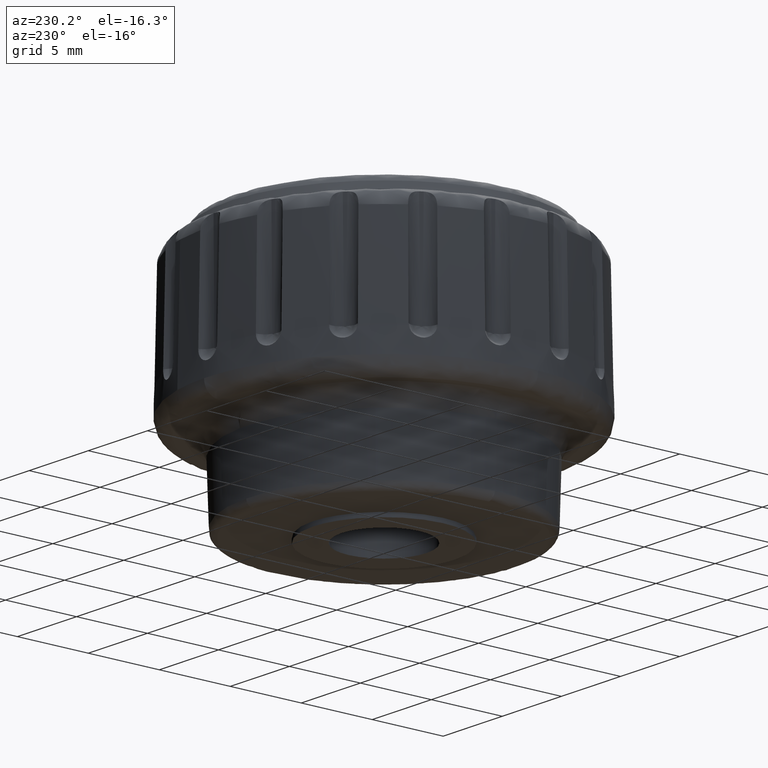
[diagram: clean part render]
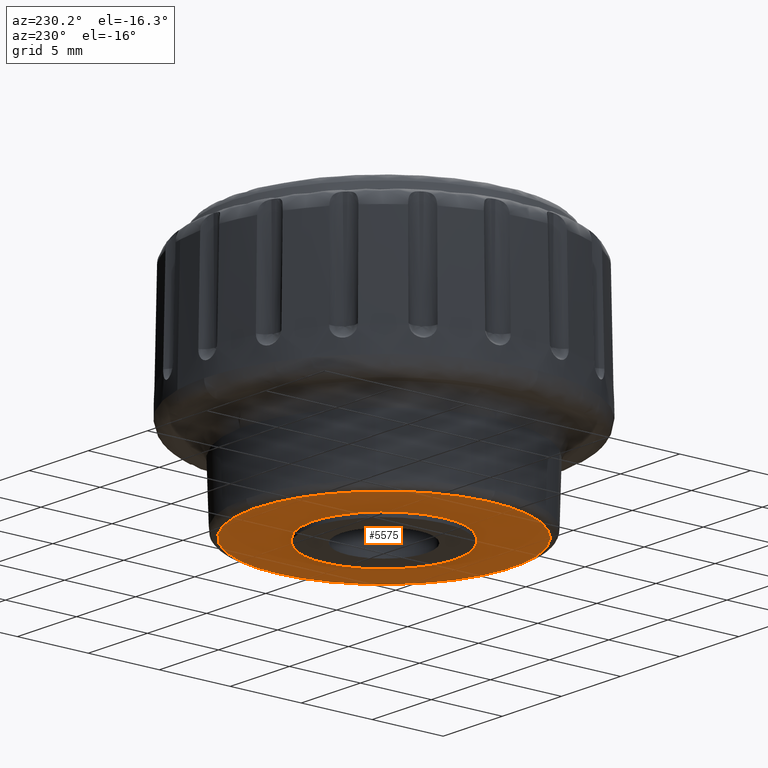
[diagram: same view with one face highlighted and labeled with its STEP entity id]
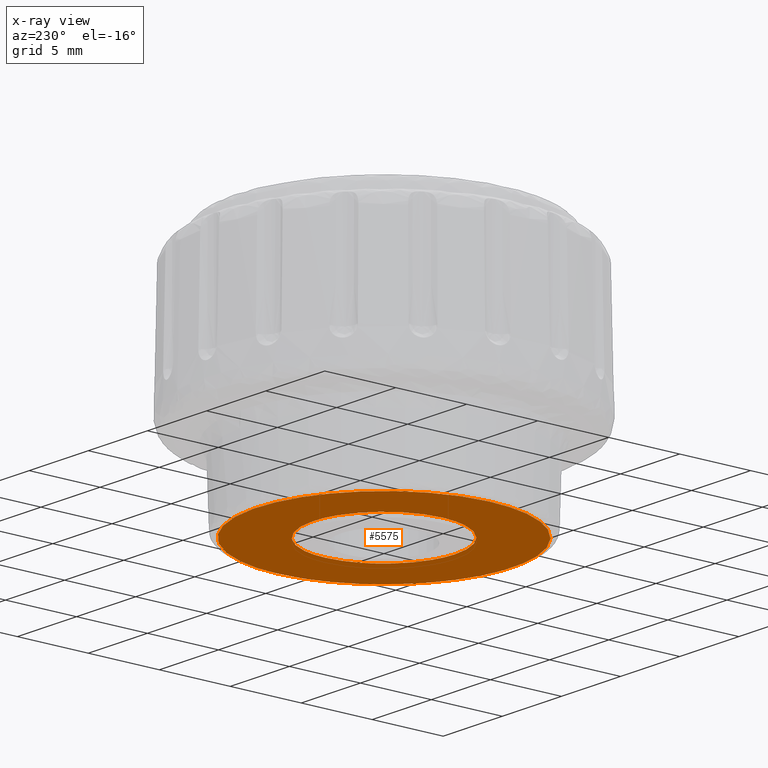
[diagram: x-ray of the same camera — body ghosted, the highlighted face saturated]
A machine part, auxiliary view. The second image highlights one B-rep face of the part: STEP entity #5575.
The next image is the same camera in x-ray: the body ghosted, the highlighted face saturated — about 0% of this face is hidden behind the body in this view.
In plain terms, the highlighted face is a freeform B-spline surface patch.
Its self-contained STEP definition (entity closure, byte-faithful):
#1564=CARTESIAN_POINT('',(-3.228710232529570,-3.817778278957625,0.300003000002192));
#1565=VERTEX_POINT('',#1564);
#1566=CARTESIAN_POINT('',(-5.0,0.0,0.300003000000004));
#1567=VERTEX_POINT('',#1566);
#1568=CARTESIAN_POINT('',(-3.228710232529570,-3.817778278957625,0.300003000002192));
#1569=CARTESIAN_POINT('',(-3.487876666218629,-3.598663134324712,0.300003000002067));
#1570=CARTESIAN_POINT('',(-3.858705299527794,-3.213805994689747,0.300003000001845));
#1571=CARTESIAN_POINT('',(-4.343816176764656,-2.516003810575840,0.300003000001446));
#1572=CARTESIAN_POINT('',(-4.658276118649627,-1.872863648544312,0.300003000001079));
#1573=CARTESIAN_POINT('',(-4.928388734568769,-0.995460427237910,0.300003000000568));
#1574=CARTESIAN_POINT('',(-5.000087539112589,-0.395949916810025,0.300003000000237));
#1575=CARTESIAN_POINT('',(-5.0,0.0,0.300003000000004));
#1576=B_SPLINE_CURVE_WITH_KNOTS('',3,(#1568,#1569,#1570,#1571,#1572,#1573,#1574,#1575),.UNSPECIFIED.,.F.,.U.,(4,1,1,1,1,4),(5.933138E-009,1.018128671941795,1.595071793655216,2.545317737113847,3.156198830820395,4.344016495721448),.UNSPECIFIED.);
#1577=EDGE_CURVE('',#1565,#1567,#1576,.T.);
#1579=CARTESIAN_POINT('',(0.000000305407711,4.999999999999991,0.300003000000004));
#1580=VERTEX_POINT('',#1579);
#1581=CARTESIAN_POINT('',(-5.0,0.0,0.300003000000004));
#1582=CARTESIAN_POINT('',(-5.000085949449764,0.388614610480620,0.300003000000003));
#1583=CARTESIAN_POINT('',(-4.919703729194469,1.073756136430105,0.300003000000004));
#1584=CARTESIAN_POINT('',(-4.630396356048808,1.940517931998691,0.300003000000004));
#1585=CARTESIAN_POINT('',(-4.304660064405916,2.568281619294666,0.300003000000002));
#1586=CARTESIAN_POINT('',(-3.904875654892181,3.151045128027404,0.300003000000011));
#1587=CARTESIAN_POINT('',(-3.417344968247991,3.679088319573781,0.300002999999994));
#1588=CARTESIAN_POINT('',(-2.812631835296491,4.153994843491471,0.300003000000011));
#1589=CARTESIAN_POINT('',(-2.271357368052631,4.467226529313811,0.300003000000002));
#1590=CARTESIAN_POINT('',(-1.716937638799692,4.706898849914013,0.300003000000003));
#1591=CARTESIAN_POINT('',(-0.991938523366407,4.929286401620831,0.300003000000008));
#1592=CARTESIAN_POINT('',(-0.388616186296629,5.000089777755469,0.300002999999999));
#1593=CARTESIAN_POINT('',(0.000000305407711,4.999999999999991,0.300003000000004));
#1594=B_SPLINE_CURVE_WITH_KNOTS('',3,(#1581,#1582,#1583,#1584,#1585,#1586,#1587,#1588,#1589,#1590,#1591,#1592,#1593),.UNSPECIFIED.,.F.,.U.,(4,1,1,1,1,1,1,1,1,1,4),(0.000000018048762,1.165826127305976,2.055538153307330,2.730491150127286,3.282725655623107,4.172433472952051,4.878064676458047,5.583698780153361,6.043893972706895,6.688171434623320,7.853994126725598),.UNSPECIFIED.);
#1595=EDGE_CURVE('',#1567,#1580,#1594,.T.);
#1597=CARTESIAN_POINT('',(5.0,0.0,0.300003000000004));
#1598=VERTEX_POINT('',#1597);
#1599=CARTESIAN_POINT('',(0.000000305407711,4.999999999999991,0.300003000000004));
#1600=CARTESIAN_POINT('',(0.286344283238275,5.000022862881608,0.300003000000004));
#1601=CARTESIAN_POINT('',(0.807888544029247,4.955069797084130,0.300003000000003));
#1602=CARTESIAN_POINT('',(1.653857236286079,4.745956520731895,0.300003000000003));
#1603=CARTESIAN_POINT('',(2.377672026939664,4.425134297469271,0.300003000000006));
#1604=CARTESIAN_POINT('',(3.002074051597843,4.013356495589333,0.300003000000002));
#1605=CARTESIAN_POINT('',(3.541547415022118,3.556650297315518,0.300003000000006));
#1606=CARTESIAN_POINT('',(3.987403329237135,3.046129769421228,0.300003000000004));
#1607=CARTESIAN_POINT('',(4.393128484066390,2.418256280920084,0.300003000000001));
#1608=CARTESIAN_POINT('',(4.704585760229278,1.759804861594883,0.300003000000006));
#1609=CARTESIAN_POINT('',(4.942415446028935,0.920374662305953,0.300003000000001));
#1610=CARTESIAN_POINT('',(5.000038755841989,0.317025056010142,0.300003000000009));
#1611=CARTESIAN_POINT('',(5.0,0.0,0.300003000000004));
#1612=B_SPLINE_CURVE_WITH_KNOTS('',3,(#1599,#1600,#1601,#1602,#1603,#1604,#1605,#1606,#1607,#1608,#1609,#1610,#1611),.UNSPECIFIED.,.F.,.U.,(4,1,1,1,1,1,1,1,1,1,4),(0.000000018059918,0.859030063009715,1.564662385063471,2.607775607636465,3.221371013824403,3.804289476344470,4.724666990506203,5.246218592854888,6.043893707812991,6.902926219229681,7.853993782459426),.UNSPECIFIED.);
#1613=EDGE_CURVE('',#1580,#1598,#1612,.T.);
#1615=CARTESIAN_POINT('',(3.626871797219657,-3.441772828653791,0.300002999993944));
#1616=VERTEX_POINT('',#1615);
#1617=CARTESIAN_POINT('',(5.0,0.0,0.300003000000004));
#1618=CARTESIAN_POINT('',(5.000039594629003,-0.326230424577311,0.300002999999429));
#1619=CARTESIAN_POINT('',(4.952420307956629,-0.810609910254602,0.300002999998578));
#1620=CARTESIAN_POINT('',(4.787969430658185,-1.473394332060644,0.300002999997409));
#1621=CARTESIAN_POINT('',(4.611412361628379,-1.957136756813458,0.300002999996558));
#1622=CARTESIAN_POINT('',(4.266648460460416,-2.658872507274525,0.300002999995323));
#1623=CARTESIAN_POINT('',(3.919585425998613,-3.133505074401429,0.300002999994487));
#1624=CARTESIAN_POINT('',(3.626871797219657,-3.441772828653791,0.300002999993944));
#1625=B_SPLINE_CURVE_WITH_KNOTS('',3,(#1617,#1618,#1619,#1620,#1621,#1622,#1623,#1624),.UNSPECIFIED.,.F.,.U.,(4,1,1,1,1,4),(4.219144E-009,0.978681366343536,1.453193902018849,2.046333008134870,2.520843395590381,3.796096662412990),.UNSPECIFIED.);
#1626=EDGE_CURVE('',#1598,#1616,#1625,.T.);
#1720=CARTESIAN_POINT('',(-0.000000305407801,-4.999999999999991,0.300003000000004));
#1721=VERTEX_POINT('',#1720);
#1722=CARTESIAN_POINT('',(-0.000000305407801,-4.999999999999991,0.300003000000004));
#1723=CARTESIAN_POINT('',(-0.255935063345291,-5.000008836122356,0.300003000000177));
#1724=CARTESIAN_POINT('',(-0.831795025140456,-4.955715651701415,0.300003000000568));
#1725=CARTESIAN_POINT('',(-1.650436812795562,-4.747093379846358,0.300003000001122));
#1726=CARTESIAN_POINT('',(-2.485795819542658,-4.368965914420380,0.300003000001690));
#1727=CARTESIAN_POINT('',(-2.977479484052941,-4.030298601254236,0.300003000002023));
#1728=CARTESIAN_POINT('',(-3.228710232529570,-3.817778278957625,0.300003000002192));
#1729=B_SPLINE_CURVE_WITH_KNOTS('',3,(#1722,#1723,#1724,#1725,#1726,#1727,#1728),.UNSPECIFIED.,.F.,.U.,(4,1,1,1,4),(3.442086E-009,0.767807039119473,1.727572381746347,2.522795852095688,3.509977629394390),.UNSPECIFIED.);
#1730=EDGE_CURVE('',#1721,#1565,#1729,.T.);
#1757=CARTESIAN_POINT('',(3.626871797219657,-3.441772828653791,0.300002999993944));
#1758=CARTESIAN_POINT('',(3.415943358915191,-3.664090769454365,0.300002999994298));
#1759=CARTESIAN_POINT('',(2.968987712318418,-4.055752477565600,0.300002999995041));
#1760=CARTESIAN_POINT('',(2.314836609882705,-4.449753770878607,0.300002999996135));
#1761=CARTESIAN_POINT('',(1.673190740587174,-4.725406760092380,0.300002999997209));
#1762=CARTESIAN_POINT('',(0.940483582209515,-4.937835395382691,0.300002999998432));
#1763=CARTESIAN_POINT('',(0.348728185388157,-5.000049475366486,0.300002999999419));
#1764=CARTESIAN_POINT('',(-0.000000305407801,-4.999999999999991,0.300003000000004));
#1765=B_SPLINE_CURVE_WITH_KNOTS('',3,(#1757,#1758,#1759,#1760,#1761,#1762,#1763,#1764),.UNSPECIFIED.,.F.,.U.,(4,1,1,1,1,4),(5.171537E-009,0.919367177250407,1.775330625140776,2.282566958796558,3.011720692089726,4.057897578769373),.UNSPECIFIED.);
#1766=EDGE_CURVE('',#1616,#1721,#1765,.T.);
#3706=CARTESIAN_POINT('',(-9.013663081773444,0.113302225684569,0.300012387994850));
#3707=VERTEX_POINT('',#3706);
#3719=CARTESIAN_POINT('',(9.012920000000001,0.0,0.300003000000004));
#3720=VERTEX_POINT('',#3719);
#3721=CARTESIAN_POINT('',(9.012920000000001,0.0,0.300003000000004));
#3722=CARTESIAN_POINT('',(9.005693152324946,-0.420812585093362,0.300003002989075));
#3723=CARTESIAN_POINT('',(9.002808470937779,-0.478013059228999,0.300004152235476));
#3724=CARTESIAN_POINT('',(8.967662263851691,-0.897417641021037,0.300003218037451));
#3725=CARTESIAN_POINT('',(8.944852643794906,-1.169608012440589,0.300002611750066));
#3726=CARTESIAN_POINT('',(8.883284901106279,-1.517919346114066,0.300004074631093));
#3727=CARTESIAN_POINT('',(8.833420879993835,-1.785891900005933,0.300003603898210));
#3728=CARTESIAN_POINT('',(8.774617933643611,-2.101902830498315,0.300003048778911));
#3729=CARTESIAN_POINT('',(8.703782388879233,-2.347985037260814,0.300003593675033));
#3730=CARTESIAN_POINT('',(8.612008971373534,-2.656122192159148,0.300003376358901));
#3731=CARTESIAN_POINT('',(8.523271321358440,-2.954066496198138,0.300003166231357));
#3732=CARTESIAN_POINT('',(8.421010198134708,-3.212808060287018,0.300003600796091));
#3733=CARTESIAN_POINT('',(8.304407619722269,-3.501052485323422,0.300003457150518));
#3734=CARTESIAN_POINT('',(8.184409962085260,-3.797689629220451,0.300003309322464));
#3735=CARTESIAN_POINT('',(8.067092198832848,-4.024226539414204,0.300001232292931));
#3736=CARTESIAN_POINT('',(7.917668626839244,-4.307251183230140,0.300003257506354));
#3737=CARTESIAN_POINT('',(7.786734959958324,-4.555253917591712,0.300005032116719));
#3738=CARTESIAN_POINT('',(7.603748925391267,-4.837453297810753,0.300004056071437));
#3739=CARTESIAN_POINT('',(7.449546549591815,-5.071737988381763,0.300003644598414));
#3740=CARTESIAN_POINT('',(7.273773854650208,-5.338795167181553,0.300003175567235));
#3741=CARTESIAN_POINT('',(7.109155271522424,-5.542979859504701,0.300003311892775));
#3742=CARTESIAN_POINT('',(6.906329856231010,-5.790212848640520,0.300003237519977));
#3743=CARTESIAN_POINT('',(6.713102672010740,-6.025746123740374,0.300003166666696));
#3744=CARTESIAN_POINT('',(6.507319113853569,-6.236422937688291,0.300001949854414));
#3745=CARTESIAN_POINT('',(6.292740704829078,-6.452755987734154,0.300003046896727));
#3746=CARTESIAN_POINT('',(6.081463836148919,-6.665760500226841,0.300004127059758));
#3747=CARTESIAN_POINT('',(5.865641269507597,-6.845507001355140,0.300001170584153));
#3748=CARTESIAN_POINT('',(5.633735605027272,-7.035934028122954,0.300003345954192));
#3749=CARTESIAN_POINT('',(5.427080812482855,-7.205626552881838,0.300005284460720));
#3750=CARTESIAN_POINT('',(5.140358812511428,-7.403023266488654,0.300003869989893));
#3751=CARTESIAN_POINT('',(4.919220215163092,-7.553408731335383,0.300004227096773));
#3752=CARTESIAN_POINT('',(4.682416569269272,-7.714447223901414,0.300004609500443));
#3753=CARTESIAN_POINT('',(4.404485746262907,-7.864588742675877,0.300003718705578));
#3754=CARTESIAN_POINT('',(4.151517547898840,-7.998943800669957,0.300003650862225));
#3755=CARTESIAN_POINT('',(3.874471386229484,-8.146087012183658,0.300003576561420));
#3756=CARTESIAN_POINT('',(3.631929977874516,-8.248978059632272,0.300009213412517));
#3757=CARTESIAN_POINT('',(3.342079097649271,-8.369104984005302,0.300004400496125));
#3758=CARTESIAN_POINT('',(3.033335431173096,-8.497061908078171,0.299999273868765));
#3759=CARTESIAN_POINT('',(2.804372871872594,-8.568127267859563,0.300000522171250));
#3760=CARTESIAN_POINT('',(2.484293994173751,-8.664468502987692,0.300003442351125));
#3761=CARTESIAN_POINT('',(2.214975578818009,-8.745531236538437,0.300005899427399));
#3762=CARTESIAN_POINT('',(1.874205760819565,-8.815079727501161,0.300003867088302));
#3763=CARTESIAN_POINT('',(1.598222829704168,-8.869409537667211,0.300003443203608));
#3764=CARTESIAN_POINT('',(1.281332735515474,-8.931792303844786,0.300002956489230));
#3765=CARTESIAN_POINT('',(1.012467681240331,-8.957671738781070,0.300003410389820));
#3766=CARTESIAN_POINT('',(0.690653248033153,-8.985877767134928,0.300003292015899));
#3767=CARTESIAN_POINT('',(0.378329020673736,-9.013252008633989,0.300003177132788));
#3768=CARTESIAN_POINT('',(0.087081647918485,-9.012709154933036,0.300003470848786));
#3769=CARTESIAN_POINT('',(-0.226482237605243,-9.009544456286179,0.300003281066305));
#3770=CARTESIAN_POINT('',(-0.637111620986460,-8.992818075932100,0.300004147699610));
#3771=CARTESIAN_POINT('',(-0.692881711385694,-8.988696973581742,0.300004143808880));
#3772=CARTESIAN_POINT('',(-1.101509600666652,-8.944884756136428,0.300003220021126));
#3773=CARTESIAN_POINT('',(-1.367334648530450,-8.916383557111777,0.300002619068694));
#3774=CARTESIAN_POINT('',(-1.704832626920623,-8.849355896946742,0.300003996515665));
#3775=CARTESIAN_POINT('',(-1.966038499719397,-8.795072696330623,0.300003614568845));
#3776=CARTESIAN_POINT('',(-2.276550864628068,-8.730542734513463,0.300003160523885));
#3777=CARTESIAN_POINT('',(-2.509175022059541,-8.658598234647911,0.300007283766807));
#3778=CARTESIAN_POINT('',(-2.811337565882708,-8.562012938342697,0.300004364805349));
#3779=CARTESIAN_POINT('',(-3.112898613820409,-8.465619908284614,0.300001451654484));
#3780=CARTESIAN_POINT('',(-3.339746798410708,-8.371851802187122,0.300006371655290));
#3781=CARTESIAN_POINT('',(-3.631298413198085,-8.248296911219548,0.300003444065272));
#3782=CARTESIAN_POINT('',(-3.920158985125793,-8.125882440987965,0.300000543497125));
#3783=CARTESIAN_POINT('',(-4.137685651456922,-8.009391046483581,0.300001394276612));
#3784=CARTESIAN_POINT('',(-4.413138399546020,-7.859108625823797,0.300003229577299));
#3785=CARTESIAN_POINT('',(-4.653510469803782,-7.727965637315093,0.300004831140647));
#3786=CARTESIAN_POINT('',(-4.927080959920104,-7.546021789563293,0.300003965515267));
#3787=CARTESIAN_POINT('',(-5.154084794372428,-7.392846038859499,0.300003601460369));
#3788=CARTESIAN_POINT('',(-5.420768932056613,-7.212895144685736,0.300003173768623));
#3789=CARTESIAN_POINT('',(-5.603712768232331,-7.062367984503833,0.300004364027796));
#3790=CARTESIAN_POINT('',(-5.850253706150961,-6.855559005860147,0.300003226785878));
#3791=CARTESIAN_POINT('',(-6.085216836468087,-6.658461982501513,0.300002142949972));
#3792=CARTESIAN_POINT('',(-6.276111295175719,-6.469066436048800,0.300003387107347));
#3793=CARTESIAN_POINT('',(-6.492081553869152,-6.251251500219843,0.300003171902020));
#3794=CARTESIAN_POINT('',(-6.705799659990909,-6.035707953381409,0.300002958940868));
#3795=CARTESIAN_POINT('',(-6.867638897851443,-5.839823573601527,0.300001322063941));
#3796=CARTESIAN_POINT('',(-7.059278449814248,-5.604365404174069,0.300003282553843));
#3797=CARTESIAN_POINT('',(-7.224308711902647,-5.401600771229144,0.300004970828308));
#3798=CARTESIAN_POINT('',(-7.416459719341972,-5.120986246391375,0.300003766950872));
#3799=CARTESIAN_POINT('',(-7.562938538117527,-4.904409186153327,0.300004056262794));
#3800=CARTESIAN_POINT('',(-7.720007903969692,-4.672173414496534,0.300004366492221));
#3801=CARTESIAN_POINT('',(-7.866134656817624,-4.401636980156814,0.300003649378372));
#3802=CARTESIAN_POINT('',(-7.997690301190670,-4.153989513905947,0.300003608674904));
#3803=CARTESIAN_POINT('',(-8.141508861832332,-3.883257670262975,0.300003564177274));
#3804=CARTESIAN_POINT('',(-8.242431659641898,-3.646747941391147,0.300008640805065));
#3805=CARTESIAN_POINT('',(-8.360475111287235,-3.363763513083022,0.300004267486160));
#3806=CARTESIAN_POINT('',(-8.485986125747875,-3.062877168449264,0.299999617506135));
#3807=CARTESIAN_POINT('',(-8.556363950409860,-2.839664496613871,0.300000801574705));
#3808=CARTESIAN_POINT('',(-8.651804695816862,-2.527880476331024,0.300003383440219));
#3809=CARTESIAN_POINT('',(-8.732187348346804,-2.265287948790416,0.300005557953815));
#3810=CARTESIAN_POINT('',(-8.802240055399974,-1.933780986037966,0.300003801028182));
#3811=CARTESIAN_POINT('',(-8.857197689374747,-1.664691939537374,0.300003413548359));
#3812=CARTESIAN_POINT('',(-8.921654986001522,-1.349089697685654,0.300002959090987));
#3813=CARTESIAN_POINT('',(-8.947672192129650,-1.101317281989651,0.300004105463558));
#3814=CARTESIAN_POINT('',(-8.978294307781301,-0.780578356297705,0.300003575194832));
#3815=CARTESIAN_POINT('',(-9.007438798575189,-0.475316212642836,0.300003070513439));
#3816=CARTESIAN_POINT('',(-9.011498461178608,-0.193388086208315,0.300004912399818));
#3817=CARTESIAN_POINT('',(-9.013663081773444,0.113302225684569,0.300012387994850));
#3818=B_SPLINE_CURVE_WITH_KNOTS('',3,(#3721,#3722,#3723,#3724,#3725,#3726,#3727,#3728,#3729,#3730,#3731,#3732,#3733,#3734,#3735,#3736,#3737,#3738,#3739,#3740,#3741,#3742,#3743,#3744,#3745,#3746,#3747,#3748,#3749,#3750,#3751,#3752,#3753,#3754,#3755,#3756,#3757,#3758,#3759,#3760,#3761,#3762,#3763,#3764,#3765,#3766,#3767,#3768,#3769,#3770,#3771,#3772,#3773,#3774,#3775,#3776,#3777,#3778,#3779,#3780,#3781,#3782,#3783,#3784,#3785,#3786,#3787,#3788,#3789,#3790,#3791,#3792,#3793,#3794,#3795,#3796,#3797,#3798,#3799,#3800,#3801,#3802,#3803,#3804,#3805,#3806,#3807,#3808,#3809,#3810,#3811,#3812,#3813,#3814,#3815,#3816,#3817),.UNSPECIFIED.,.F.,.U.,(4,3,3,3,3,3,3,3,3,3,3,3,3,3,3,3,3,3,3,3,3,3,3,3,3,3,3,3,3,3,3,3,4),(0.0,1.262623907544322,2.082057183378455,3.048387011608768,3.982751672174258,4.944321923649058,5.786905977218550,6.747353370087178,7.662349871137412,8.563268078491305,9.366090491895545,10.225783357722751,11.167303320438309,12.170192547903881,13.014036226250260,13.982957389711300,14.923305374524460,16.155701891438142,16.957413844266959,17.910460848076880,18.861610681429489,19.803981331825469,20.626335023183689,21.592436259228361,22.513168420550880,23.424299124165781,24.208918673075690,25.050266903575348,25.970041133601931,26.948001326025281,27.771664573838859,28.737701545322441,29.657123832869061),.UNSPECIFIED.);
#3819=EDGE_CURVE('',#3720,#3707,#3818,.T.);
#3821=CARTESIAN_POINT('',(0.226495541120300,9.010073674901324,0.300003000000261));
#3822=VERTEX_POINT('',#3821);
#3823=CARTESIAN_POINT('',(0.226495541120300,9.010073674901324,0.300003000000261));
#3824=CARTESIAN_POINT('',(0.679836026632207,8.998705391465398,0.300003000000247));
#3825=CARTESIAN_POINT('',(1.403786677307098,8.925576961679296,0.300003000000228));
#3826=CARTESIAN_POINT('',(2.448958878864604,8.690358819734279,0.300003000000195));
#3827=CARTESIAN_POINT('',(3.499626579876943,8.337547893002025,0.300003000000166));
#3828=CARTESIAN_POINT('',(4.444120950388578,7.866208613804715,0.300003000000136));
#3829=CARTESIAN_POINT('',(5.415436971593294,7.228987232766785,0.300003000000113));
#3830=CARTESIAN_POINT('',(6.185594990771423,6.590359169728395,0.300003000000085));
#3831=CARTESIAN_POINT('',(6.939853709058947,5.778544560876968,0.300003000000061));
#3832=CARTESIAN_POINT('',(7.547384411929590,4.962580431138556,0.300003000000051));
#3833=CARTESIAN_POINT('',(8.057696874888121,4.082125311546410,0.300003000000030));
#3834=CARTESIAN_POINT('',(8.492736668655635,3.082742676586550,0.300003000000020));
#3835=CARTESIAN_POINT('',(8.783664705355537,2.107157155632613,0.300003000000011));
#3836=CARTESIAN_POINT('',(8.970304829916806,1.052071899008968,0.300003000000005));
#3837=CARTESIAN_POINT('',(9.012933069716766,0.380923461321333,0.300003000000004));
#3838=CARTESIAN_POINT('',(9.012920000000001,0.0,0.300003000000004));
#3839=B_SPLINE_CURVE_WITH_KNOTS('',3,(#3823,#3824,#3825,#3826,#3827,#3828,#3829,#3830,#3831,#3832,#3833,#3834,#3835,#3836,#3837,#3838),.UNSPECIFIED.,.F.,.U.,(4,1,1,1,1,1,1,1,1,1,1,1,1,4),(0.000000010913338,1.360444754151065,2.176712717775386,3.210651234320240,4.679935760341015,5.332953528248947,6.693397757515635,7.672904612419165,8.652430359224752,9.740789429944831,10.720312701612650,11.917504009861140,12.788193010887740,13.930963428078050),.UNSPECIFIED.);
#3840=EDGE_CURVE('',#3822,#3720,#3839,.T.);
#3882=CARTESIAN_POINT('',(-9.013663081773444,0.113302225684569,0.300012387994850));
#3883=CARTESIAN_POINT('',(-9.006193415147974,0.707913207045778,0.300012082186250));
#3884=CARTESIAN_POINT('',(-8.916598236056586,1.505866687451071,0.300011629849614));
#3885=CARTESIAN_POINT('',(-8.637373000604280,2.624345284015876,0.300010914818818));
#3886=CARTESIAN_POINT('',(-8.286168304473105,3.625592974141984,0.300010221356804));
#3887=CARTESIAN_POINT('',(-7.726833224266796,4.700919477708825,0.300009380562741));
#3888=CARTESIAN_POINT('',(-6.924330676842551,5.820532116886413,0.300008389090576));
#3889=CARTESIAN_POINT('',(-6.056872173695195,6.720138087309462,0.300007475066843));
#3890=CARTESIAN_POINT('',(-5.023391659805805,7.514172973231670,0.300006527114348));
#3891=CARTESIAN_POINT('',(-3.943698756409862,8.139960579140508,0.300005640214585));
#3892=CARTESIAN_POINT('',(-2.662816087743944,8.651496716516915,0.300004705252868));
#3893=CARTESIAN_POINT('',(-1.243071318500163,8.967654250151270,0.300003796274019));
#3894=CARTESIAN_POINT('',(-0.256505650048092,9.022259471435435,0.300003248446354));
#3895=CARTESIAN_POINT('',(0.226495541120300,9.010073674901324,0.300003000000261));
#3896=B_SPLINE_CURVE_WITH_KNOTS('',3,(#3882,#3883,#3884,#3885,#3886,#3887,#3888,#3889,#3890,#3891,#3892,#3893,#3894,#3895),.UNSPECIFIED.,.F.,.U.,(4,1,1,1,1,1,1,1,1,1,1,4),(9.949487E-009,1.783950384259402,2.397186666348450,3.456412877163075,4.961629846604248,6.020855988300260,7.581800495598287,8.696776367864800,9.923249138219690,11.316967329782370,12.822179842767611,14.271641224991740),.UNSPECIFIED.);
#3897=EDGE_CURVE('',#3707,#3822,#3896,.T.);
#5557=CARTESIAN_POINT('',(9.913348297657560,-9.911008175583008,0.300003000000004));
#5558=CARTESIAN_POINT('',(-9.914091379431005,-9.911008175583010,0.300003000000004));
#5559=CARTESIAN_POINT('',(9.913348297657560,9.910219882822251,0.300003000000004));
#5560=CARTESIAN_POINT('',(-9.914091379431005,9.910219882822251,0.300003000000004));
#5561=B_SPLINE_SURFACE_WITH_KNOTS('',1,1,((#5557,#5559),(#5558,#5560)),.UNSPECIFIED.,.F.,.F.,.U.,(2,2),(2,2),(0.0,19.827439677088559),(0.0,19.821228058405261),.UNSPECIFIED.);
#5562=ORIENTED_EDGE('',*,*,#3897,.T.);
#5563=ORIENTED_EDGE('',*,*,#3840,.T.);
#5564=ORIENTED_EDGE('',*,*,#3819,.T.);
#5565=EDGE_LOOP('',(#5562,#5563,#5564));
#5566=FACE_OUTER_BOUND('',#5565,.T.);
#5567=ORIENTED_EDGE('',*,*,#1595,.F.);
#5568=ORIENTED_EDGE('',*,*,#1577,.F.);
#5569=ORIENTED_EDGE('',*,*,#1730,.F.);
#5570=ORIENTED_EDGE('',*,*,#1766,.F.);
#5571=ORIENTED_EDGE('',*,*,#1626,.F.);
#5572=ORIENTED_EDGE('',*,*,#1613,.F.);
#5573=EDGE_LOOP('',(#5567,#5568,#5569,#5570,#5571,#5572));
#5574=FACE_BOUND('',#5573,.T.);
#5575=ADVANCED_FACE('',(#5566,#5574),#5561,.T.);